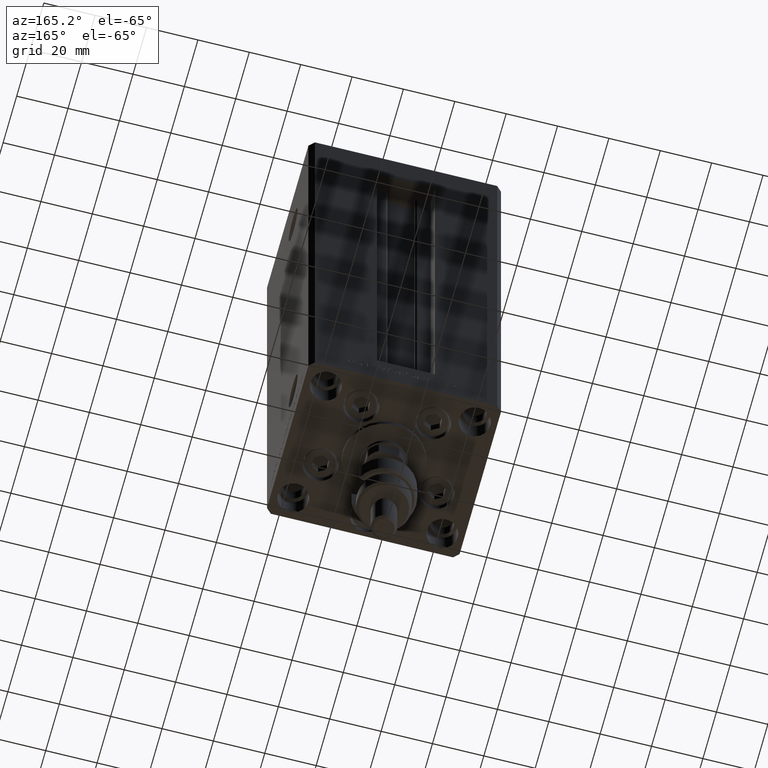
[diagram: clean part render]
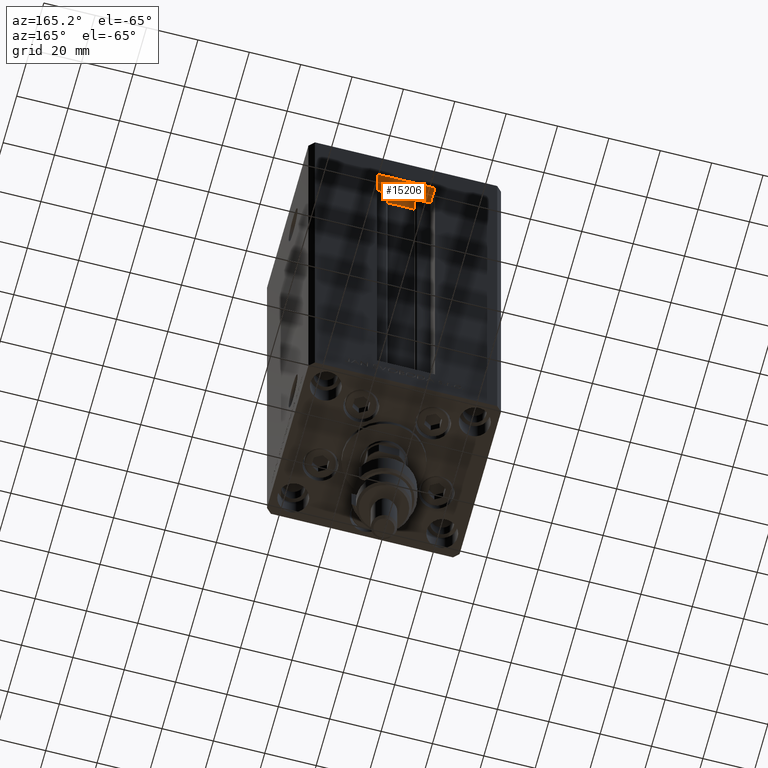
[diagram: same view with one face highlighted and labeled with its STEP entity id]
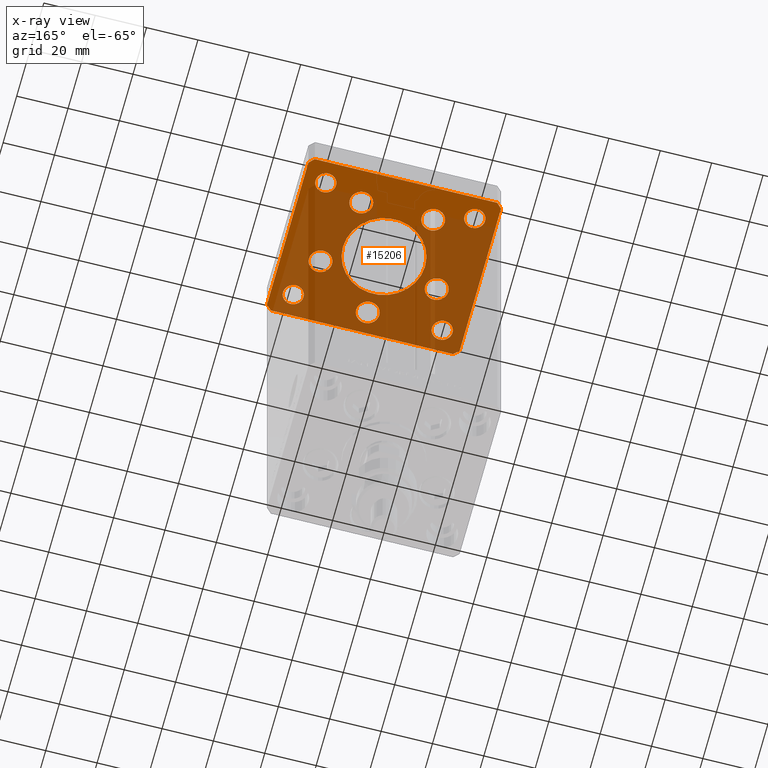
[diagram: x-ray of the same camera — body ghosted, the highlighted face saturated]
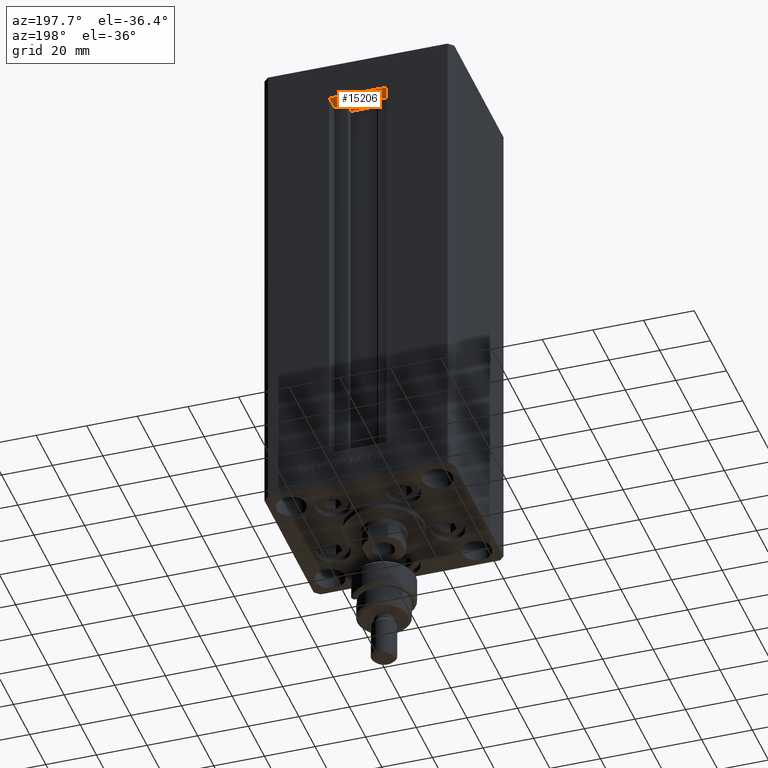
[diagram: same view with one face highlighted and labeled with its STEP entity id]
A machine part, auxiliary view. The second image highlights one B-rep face of the part: STEP entity #15206.
The next image is the same camera in x-ray: the body ghosted, the highlighted face saturated — about 73% of this face is hidden behind the body in this view.
A second angle (auxiliary view) of the same face is appended — the face is thin or edge-on in the first view.
In plain terms, the highlighted planar face has unit normal (0, 0, 1).
Its self-contained STEP definition (entity closure, byte-faithful):
#69 = VECTOR ( 'NONE', #26062, 1000.000000000000000 ) ;
#404 = VERTEX_POINT ( 'NONE', #17530 ) ;
#678 = DIRECTION ( 'NONE',  ( 1.000000000000000000, 0.000000000000000000, 0.000000000000000000 ) ) ;
#708 = ORIENTED_EDGE ( 'NONE', *, *, #14565, .F. ) ;
#876 = AXIS2_PLACEMENT_3D ( 'NONE', #47616, #23892, #32058 ) ;
#1209 = EDGE_CURVE ( 'NONE', #22121, #33200, #34092, .T. ) ;
#1235 = DIRECTION ( 'NONE',  ( 1.000000000000000000, 0.000000000000000000, 0.000000000000000000 ) ) ;
#1530 = AXIS2_PLACEMENT_3D ( 'NONE', #39273, #31621, #16043 ) ;
#2572 = AXIS2_PLACEMENT_3D ( 'NONE', #49474, #49733, #29589 ) ;
#2823 = EDGE_CURVE ( 'NONE', #404, #44061, #34966, .T. ) ;
#2940 = EDGE_CURVE ( 'NONE', #50050, #28898, #42026, .T. ) ;
#3767 = CARTESIAN_POINT ( 'NONE',  ( 29.00000000000001066, 24.00000000000000711, -15.00000000000000000 ) ) ;
#3794 = CARTESIAN_POINT ( 'NONE',  ( 37.50000000000001421, -30.50000000000000711, -15.00000000000000000 ) ) ;
#3923 = ORIENTED_EDGE ( 'NONE', *, *, #28766, .F. ) ;
#4332 = CARTESIAN_POINT ( 'NONE',  ( -33.00000000000000711, 24.00000000000000711, -15.00000000000000000 ) ) ;
#4336 = EDGE_CURVE ( 'NONE', #4981, #19850, #49724, .T. ) ;
#4348 = DIRECTION ( 'NONE',  ( -1.000000000000000000, 0.000000000000000000, 0.000000000000000000 ) ) ;
#4368 = AXIS2_PLACEMENT_3D ( 'NONE', #43062, #46881, #19587 ) ;
#4510 = CARTESIAN_POINT ( 'NONE',  ( -33.00000000000000711, -23.99999999999999289, -15.00000000000000000 ) ) ;
#4518 = CARTESIAN_POINT ( 'NONE',  ( -25.00000000000001066, -23.99999999999999289, -15.00000000000000000 ) ) ;
#4543 = CARTESIAN_POINT ( 'NONE',  ( 35.49999999999992184, 32.50000000000000711, -15.00000000000000000 ) ) ;
#4787 = EDGE_CURVE ( 'NONE', #26124, #34533, #43672, .T. ) ;
#4981 = VERTEX_POINT ( 'NONE', #31133 ) ;
#5221 = FACE_BOUND ( 'NONE', #29828, .T. ) ;
#5439 = CARTESIAN_POINT ( 'NONE',  ( -35.50000000000002842, 32.49999999999999289, -15.00000000000000000 ) ) ;
#5844 = DIRECTION ( 'NONE',  ( -0.7071067811865426878, -0.7071067811865524577, 0.000000000000000000 ) ) ;
#6157 = LINE ( 'NONE', #6407, #69 ) ;
#6295 = LINE ( 'NONE', #14209, #33550 ) ;
#6407 = CARTESIAN_POINT ( 'NONE',  ( 35.49999999999992184, 32.50000000000000711, -15.00000000000000000 ) ) ;
#6420 = DIRECTION ( 'NONE',  ( -0.000000000000000000, -0.000000000000000000, -1.000000000000000000 ) ) ;
#6622 = AXIS2_PLACEMENT_3D ( 'NONE', #27955, #28456, #35853 ) ;
#6719 = CIRCLE ( 'NONE', #46707, 4.500000000000000888 ) ;
#6747 = EDGE_CURVE ( 'NONE', #29722, #17538, #6157, .T. ) ;
#7273 = VERTEX_POINT ( 'NONE', #20108 ) ;
#7913 = ORIENTED_EDGE ( 'NONE', *, *, #31386, .F. ) ;
#8972 = EDGE_CURVE ( 'NONE', #34921, #47012, #24603, .T. ) ;
#9132 = CARTESIAN_POINT ( 'NONE',  ( 0.000000000000000000, 0.000000000000000000, -15.00000000000000000 ) ) ;
#9285 = CARTESIAN_POINT ( 'NONE',  ( -29.00000000000001066, -23.99999999999999289, -15.00000000000000000 ) ) ;
#9439 = CARTESIAN_POINT ( 'NONE',  ( 22.62741699796951877, -8.000000000000000000, -15.00000000000000000 ) ) ;
#9501 = CARTESIAN_POINT ( 'NONE',  ( -16.00000000000000000, 1.959434878635764737E-15, -15.00000000000000000 ) ) ;
#9521 = CARTESIAN_POINT ( 'NONE',  ( 29.00000000000001066, -23.99999999999999289, -15.00000000000000000 ) ) ;
#9961 = AXIS2_PLACEMENT_3D ( 'NONE', #30065, #44859, #22396 ) ;
#10136 = EDGE_CURVE ( 'NONE', #19850, #4981, #34273, .T. ) ;
#10159 = CARTESIAN_POINT ( 'NONE',  ( -35.50000000000002842, 32.49999999999999289, -15.00000000000000000 ) ) ;
#10349 = ORIENTED_EDGE ( 'NONE', *, *, #13778, .F. ) ;
#10938 = ORIENTED_EDGE ( 'NONE', *, *, #23290, .F. ) ;
#11359 = ORIENTED_EDGE ( 'NONE', *, *, #24561, .F. ) ;
#11685 = EDGE_LOOP ( 'NONE', ( #39452, #26827 ) ) ;
#12003 = VERTEX_POINT ( 'NONE', #46341 ) ;
#12117 = PLANE ( 'NONE',  #6622 ) ;
#12310 = ORIENTED_EDGE ( 'NONE', *, *, #1209, .T. ) ;
#12582 = EDGE_CURVE ( 'NONE', #46758, #46001, #36019, .T. ) ;
#12670 = DIRECTION ( 'NONE',  ( 0.000000000000000000, 0.000000000000000000, 1.000000000000000000 ) ) ;
#12710 = CARTESIAN_POINT ( 'NONE',  ( -37.50000000000001421, 30.49999999999998579, -15.00000000000000000 ) ) ;
#12880 = FACE_BOUND ( 'NONE', #14007, .T. ) ;
#13329 = CARTESIAN_POINT ( 'NONE',  ( -22.62741699796951877, -8.000000000000005329, -15.00000000000000000 ) ) ;
#13400 = VERTEX_POINT ( 'NONE', #49564 ) ;
#13526 = AXIS2_PLACEMENT_3D ( 'NONE', #9521, #33009, #48080 ) ;
#13716 = DIRECTION ( 'NONE',  ( -0.7071067811865482389, 0.7071067811865469066, 0.000000000000000000 ) ) ;
#13778 = EDGE_CURVE ( 'NONE', #12003, #7273, #49944, .T. ) ;
#14007 = EDGE_LOOP ( 'NONE', ( #10938, #42365 ) ) ;
#14122 = DIRECTION ( 'NONE',  ( 1.000000000000000000, 0.000000000000000000, 0.000000000000000000 ) ) ;
#14209 = CARTESIAN_POINT ( 'NONE',  ( 37.49999999999992184, 30.50000000000001066, -15.00000000000000000 ) ) ;
#14330 = AXIS2_PLACEMENT_3D ( 'NONE', #3767, #27248, #37985 ) ;
#14493 = DIRECTION ( 'NONE',  ( 0.000000000000000000, -0.000000000000000000, -1.000000000000000000 ) ) ;
#14565 = EDGE_CURVE ( 'NONE', #31536, #13400, #6719, .T. ) ;
#14598 = DIRECTION ( 'NONE',  ( 0.000000000000000000, 0.000000000000000000, 1.000000000000000000 ) ) ;
#14683 = VECTOR ( 'NONE', #36273, 1000.000000000000000 ) ;
#15206 = ADVANCED_FACE ( 'NONE', ( #32272, #5221, #20030, #16454, #44250, #12880, #47839, #35599, #27700, #40188, #48088 ), #12117, .F. ) ;
#15272 = VERTEX_POINT ( 'NONE', #29698 ) ;
#15355 = CARTESIAN_POINT ( 'NONE',  ( 35.50000000000000711, -32.50000000000000711, -15.00000000000000000 ) ) ;
#15432 = CARTESIAN_POINT ( 'NONE',  ( -18.12741699796952233, -8.000000000000005329, -15.00000000000000000 ) ) ;
#15435 = CARTESIAN_POINT ( 'NONE',  ( 13.99106857963322348, 19.50000000000000000, -15.00000000000000000 ) ) ;
#16043 = DIRECTION ( 'NONE',  ( 1.000000000000000000, 0.000000000000000000, 0.000000000000000000 ) ) ;
#16283 = AXIS2_PLACEMENT_3D ( 'NONE', #15435, #19765, #31006 ) ;
#16454 = FACE_BOUND ( 'NONE', #49909, .T. ) ;
#16734 = CARTESIAN_POINT ( 'NONE',  ( -9.491068579633228808, 19.49999999999999645, -15.00000000000000000 ) ) ;
#16763 = ORIENTED_EDGE ( 'NONE', *, *, #4787, .F. ) ;
#16778 = CIRCLE ( 'NONE', #48545, 3.999999999999996447 ) ;
#16952 = EDGE_CURVE ( 'NONE', #34533, #29722, #6295, .T. ) ;
#17530 = CARTESIAN_POINT ( 'NONE',  ( 16.00000000000000000, 0.000000000000000000, -15.00000000000000000 ) ) ;
#17538 = VERTEX_POINT ( 'NONE', #5439 ) ;
#17635 = CIRCLE ( 'NONE', #32330, 4.499999999999999112 ) ;
#18046 = CARTESIAN_POINT ( 'NONE',  ( -35.49999999999998579, -32.50000000000001421, -15.00000000000000000 ) ) ;
#18170 = DIRECTION ( 'NONE',  ( 1.000000000000000000, 0.000000000000000000, 0.000000000000000000 ) ) ;
#18252 = EDGE_CURVE ( 'NONE', #28898, #26124, #22771, .T. ) ;
#18416 = CARTESIAN_POINT ( 'NONE',  ( -13.99106857963322703, 19.49999999999999645, -15.00000000000000000 ) ) ;
#18618 = CARTESIAN_POINT ( 'NONE',  ( 18.12741699796951877, -8.000000000000000000, -15.00000000000000000 ) ) ;
#18906 = VECTOR ( 'NONE', #23026, 1000.000000000000000 ) ;
#19232 = CARTESIAN_POINT ( 'NONE',  ( 33.00000000000001421, 24.00000000000000711, -15.00000000000000000 ) ) ;
#19271 = LINE ( 'NONE', #23107, #28687 ) ;
#19528 = ORIENTED_EDGE ( 'NONE', *, *, #18252, .F. ) ;
#19576 = VERTEX_POINT ( 'NONE', #42489 ) ;
#19587 = DIRECTION ( 'NONE',  ( 1.000000000000000000, 0.000000000000000000, 0.000000000000000000 ) ) ;
#19594 = EDGE_CURVE ( 'NONE', #49238, #50050, #19271, .T. ) ;
#19765 = DIRECTION ( 'NONE',  ( 0.000000000000000000, -0.000000000000000000, -1.000000000000000000 ) ) ;
#19850 = VERTEX_POINT ( 'NONE', #42427 ) ;
#20030 = FACE_BOUND ( 'NONE', #35917, .T. ) ;
#20108 = CARTESIAN_POINT ( 'NONE',  ( 25.00000000000000711, -23.99999999999999289, -15.00000000000000000 ) ) ;
#20579 = CARTESIAN_POINT ( 'NONE',  ( -29.00000000000001066, 24.00000000000000711, -15.00000000000000000 ) ) ;
#20800 = ORIENTED_EDGE ( 'NONE', *, *, #44650, .F. ) ;
#20951 = DIRECTION ( 'NONE',  ( 0.000000000000000000, -0.000000000000000000, -1.000000000000000000 ) ) ;
#21174 = CARTESIAN_POINT ( 'NONE',  ( -27.12741699796951877, -8.000000000000005329, -15.00000000000000000 ) ) ;
#21200 = DIRECTION ( 'NONE',  ( 1.000000000000000000, 0.000000000000000000, 0.000000000000000000 ) ) ;
#21983 = VERTEX_POINT ( 'NONE', #12710 ) ;
#22121 = VERTEX_POINT ( 'NONE', #35368 ) ;
#22331 = DIRECTION ( 'NONE',  ( 4.550094363217855288E-16, -1.000000000000000000, 0.000000000000000000 ) ) ;
#22396 = DIRECTION ( 'NONE',  ( -1.000000000000000000, 0.000000000000000000, 0.000000000000000000 ) ) ;
#22771 = LINE ( 'NONE', #15355, #18906 ) ;
#22831 = VERTEX_POINT ( 'NONE', #16734 ) ;
#23026 = DIRECTION ( 'NONE',  ( 0.7071067811865487940, 0.7071067811865463515, 0.000000000000000000 ) ) ;
#23047 = ORIENTED_EDGE ( 'NONE', *, *, #44132, .T. ) ;
#23096 = LINE ( 'NONE', #34573, #27303 ) ;
#23107 = CARTESIAN_POINT ( 'NONE',  ( -37.49999999999998579, -30.50000000000001421, -15.00000000000000000 ) ) ;
#23207 = AXIS2_PLACEMENT_3D ( 'NONE', #32345, #43815, #31844 ) ;
#23290 = EDGE_CURVE ( 'NONE', #22831, #49214, #41807, .T. ) ;
#23356 = DIRECTION ( 'NONE',  ( 0.7071067811865474617, -0.7071067811865474617, 0.000000000000000000 ) ) ;
#23892 = DIRECTION ( 'NONE',  ( 0.000000000000000000, -0.000000000000000000, -1.000000000000000000 ) ) ;
#24056 = ORIENTED_EDGE ( 'NONE', *, *, #28089, .F. ) ;
#24506 = EDGE_CURVE ( 'NONE', #17538, #21983, #26243, .T. ) ;
#24561 = EDGE_CURVE ( 'NONE', #44061, #404, #45082, .T. ) ;
#24603 = CIRCLE ( 'NONE', #2572, 4.499999999999997335 ) ;
#24872 = DIRECTION ( 'NONE',  ( -0.000000000000000000, -0.000000000000000000, -1.000000000000000000 ) ) ;
#24954 = AXIS2_PLACEMENT_3D ( 'NONE', #9439, #20951, #21200 ) ;
#25058 = ORIENTED_EDGE ( 'NONE', *, *, #6747, .F. ) ;
#25468 = DIRECTION ( 'NONE',  ( 1.000000000000000000, 9.773090005503140331E-17, 0.000000000000000000 ) ) ;
#25829 = CARTESIAN_POINT ( 'NONE',  ( -29.00000000000001066, -23.99999999999999289, -15.00000000000000000 ) ) ;
#25859 = CARTESIAN_POINT ( 'NONE',  ( -13.99106857963322703, 19.49999999999999645, -15.00000000000000000 ) ) ;
#26062 = DIRECTION ( 'NONE',  ( -1.000000000000000000, -1.954618001100629052E-16, 0.000000000000000000 ) ) ;
#26124 = VERTEX_POINT ( 'NONE', #3794 ) ;
#26243 = LINE ( 'NONE', #10159, #41004 ) ;
#26503 = DIRECTION ( 'NONE',  ( 1.000000000000000000, 0.000000000000000000, 0.000000000000000000 ) ) ;
#26508 = AXIS2_PLACEMENT_3D ( 'NONE', #13329, #36808, #26503 ) ;
#26804 = EDGE_CURVE ( 'NONE', #19576, #15272, #39453, .T. ) ;
#26827 = ORIENTED_EDGE ( 'NONE', *, *, #10136, .F. ) ;
#27057 = EDGE_LOOP ( 'NONE', ( #40874, #11359 ) ) ;
#27248 = DIRECTION ( 'NONE',  ( 0.000000000000000000, 0.000000000000000000, 1.000000000000000000 ) ) ;
#27303 = VECTOR ( 'NONE', #22331, 1000.000000000000000 ) ;
#27573 = ORIENTED_EDGE ( 'NONE', *, *, #24506, .F. ) ;
#27700 = FACE_OUTER_BOUND ( 'NONE', #31397, .T. ) ;
#27955 = CARTESIAN_POINT ( 'NONE',  ( 0.000000000000000000, 0.000000000000000000, -15.00000000000000000 ) ) ;
#28089 = EDGE_CURVE ( 'NONE', #15272, #19576, #44393, .T. ) ;
#28456 = DIRECTION ( 'NONE',  ( -0.000000000000000000, 0.000000000000000000, 1.000000000000000000 ) ) ;
#28687 = VECTOR ( 'NONE', #23356, 1000.000000000000114 ) ;
#28766 = EDGE_CURVE ( 'NONE', #47012, #34921, #37916, .T. ) ;
#28898 = VERTEX_POINT ( 'NONE', #38253 ) ;
#29062 = CIRCLE ( 'NONE', #13526, 4.000000000000003553 ) ;
#29589 = DIRECTION ( 'NONE',  ( 1.000000000000000000, 0.000000000000000000, 0.000000000000000000 ) ) ;
#29698 = CARTESIAN_POINT ( 'NONE',  ( 4.500000000000003553, -24.00000000000000000, -15.00000000000000000 ) ) ;
#29722 = VERTEX_POINT ( 'NONE', #4543 ) ;
#29824 = CIRCLE ( 'NONE', #24954, 4.500000000000000888 ) ;
#29828 = EDGE_LOOP ( 'NONE', ( #3923, #43218 ) ) ;
#30065 = CARTESIAN_POINT ( 'NONE',  ( 29.00000000000001066, -23.99999999999999289, -15.00000000000000000 ) ) ;
#30095 = VERTEX_POINT ( 'NONE', #19232 ) ;
#30168 = CARTESIAN_POINT ( 'NONE',  ( 29.00000000000001066, 24.00000000000000711, -15.00000000000000000 ) ) ;
#30318 = DIRECTION ( 'NONE',  ( 1.000000000000000000, 0.000000000000000000, 0.000000000000000000 ) ) ;
#31006 = DIRECTION ( 'NONE',  ( 1.000000000000000000, 0.000000000000000000, 0.000000000000000000 ) ) ;
#31133 = CARTESIAN_POINT ( 'NONE',  ( 18.49106857963322881, 19.50000000000000000, -15.00000000000000000 ) ) ;
#31386 = EDGE_CURVE ( 'NONE', #13400, #31536, #29824, .T. ) ;
#31397 = EDGE_LOOP ( 'NONE', ( #50098, #20800, #27573, #25058, #44187, #16763, #19528, #45591 ) ) ;
#31536 = VERTEX_POINT ( 'NONE', #18618 ) ;
#31621 = DIRECTION ( 'NONE',  ( 0.000000000000000000, 0.000000000000000000, 1.000000000000000000 ) ) ;
#31704 = AXIS2_PLACEMENT_3D ( 'NONE', #9132, #43597, #1235 ) ;
#31844 = DIRECTION ( 'NONE',  ( 1.000000000000000000, 0.000000000000000000, 0.000000000000000000 ) ) ;
#32058 = DIRECTION ( 'NONE',  ( 1.000000000000000000, 0.000000000000000000, 0.000000000000000000 ) ) ;
#32272 = FACE_BOUND ( 'NONE', #27057, .T. ) ;
#32330 = AXIS2_PLACEMENT_3D ( 'NONE', #25859, #34015, #14122 ) ;
#32345 = CARTESIAN_POINT ( 'NONE',  ( 2.939152317953647500E-15, -24.00000000000000000, -15.00000000000000000 ) ) ;
#32460 = CARTESIAN_POINT ( 'NONE',  ( -37.49999999999998579, -30.50000000000001421, -15.00000000000000000 ) ) ;
#33009 = DIRECTION ( 'NONE',  ( -0.000000000000000000, -0.000000000000000000, -1.000000000000000000 ) ) ;
#33087 = EDGE_LOOP ( 'NONE', ( #37048, #23047 ) ) ;
#33200 = VERTEX_POINT ( 'NONE', #4332 ) ;
#33550 = VECTOR ( 'NONE', #13716, 999.9999999999998863 ) ;
#33660 = EDGE_LOOP ( 'NONE', ( #10349, #37057 ) ) ;
#34015 = DIRECTION ( 'NONE',  ( 0.000000000000000000, -0.000000000000000000, -1.000000000000000000 ) ) ;
#34092 = CIRCLE ( 'NONE', #1530, 4.000000000000000000 ) ;
#34149 = EDGE_CURVE ( 'NONE', #30095, #37843, #47747, .T. ) ;
#34273 = CIRCLE ( 'NONE', #876, 4.500000000000005329 ) ;
#34533 = VERTEX_POINT ( 'NONE', #35860 ) ;
#34573 = CARTESIAN_POINT ( 'NONE',  ( -37.50000000000001421, 30.49999999999998579, -15.00000000000000000 ) ) ;
#34588 = AXIS2_PLACEMENT_3D ( 'NONE', #30168, #14598, #49562 ) ;
#34687 = EDGE_CURVE ( 'NONE', #46001, #46758, #16778, .T. ) ;
#34921 = VERTEX_POINT ( 'NONE', #21174 ) ;
#34966 = CIRCLE ( 'NONE', #31704, 16.00000000000000000 ) ;
#35368 = CARTESIAN_POINT ( 'NONE',  ( -25.00000000000001066, 24.00000000000000711, -15.00000000000000000 ) ) ;
#35569 = DIRECTION ( 'NONE',  ( 1.000000000000000000, 0.000000000000000000, 0.000000000000000000 ) ) ;
#35599 = FACE_BOUND ( 'NONE', #42190, .T. ) ;
#35823 = DIRECTION ( 'NONE',  ( 0.000000000000000000, -0.000000000000000000, -1.000000000000000000 ) ) ;
#35853 = DIRECTION ( 'NONE',  ( 1.000000000000000000, 0.000000000000000000, 0.000000000000000000 ) ) ;
#35860 = CARTESIAN_POINT ( 'NONE',  ( 37.49999999999992184, 30.50000000000001066, -15.00000000000000000 ) ) ;
#35917 = EDGE_LOOP ( 'NONE', ( #24056, #49974 ) ) ;
#36019 = CIRCLE ( 'NONE', #36860, 3.999999999999996447 ) ;
#36273 = DIRECTION ( 'NONE',  ( -1.478780668045802821E-15, 1.000000000000000000, 0.000000000000000000 ) ) ;
#36394 = CARTESIAN_POINT ( 'NONE',  ( 25.00000000000000711, 24.00000000000000711, -15.00000000000000000 ) ) ;
#36497 = AXIS2_PLACEMENT_3D ( 'NONE', #20579, #12670, #678 ) ;
#36808 = DIRECTION ( 'NONE',  ( 0.000000000000000000, -0.000000000000000000, -1.000000000000000000 ) ) ;
#36860 = AXIS2_PLACEMENT_3D ( 'NONE', #25829, #6420, #38077 ) ;
#37048 = ORIENTED_EDGE ( 'NONE', *, *, #34149, .T. ) ;
#37057 = ORIENTED_EDGE ( 'NONE', *, *, #48136, .F. ) ;
#37223 = CARTESIAN_POINT ( 'NONE',  ( 22.62741699796951877, -8.000000000000000000, -15.00000000000000000 ) ) ;
#37843 = VERTEX_POINT ( 'NONE', #36394 ) ;
#37916 = CIRCLE ( 'NONE', #26508, 4.499999999999997335 ) ;
#37985 = DIRECTION ( 'NONE',  ( 1.000000000000000000, 0.000000000000000000, 0.000000000000000000 ) ) ;
#38077 = DIRECTION ( 'NONE',  ( -1.000000000000000000, 0.000000000000000000, 0.000000000000000000 ) ) ;
#38253 = CARTESIAN_POINT ( 'NONE',  ( 35.50000000000000711, -32.50000000000000711, -15.00000000000000000 ) ) ;
#38601 = EDGE_CURVE ( 'NONE', #33200, #22121, #40566, .T. ) ;
#39273 = CARTESIAN_POINT ( 'NONE',  ( -29.00000000000001066, 24.00000000000000711, -15.00000000000000000 ) ) ;
#39452 = ORIENTED_EDGE ( 'NONE', *, *, #4336, .F. ) ;
#39453 = CIRCLE ( 'NONE', #47612, 4.500000000000001776 ) ;
#40104 = CARTESIAN_POINT ( 'NONE',  ( 37.50000000000001421, -30.50000000000000711, -15.00000000000000000 ) ) ;
#40153 = CARTESIAN_POINT ( 'NONE',  ( 2.939152317953647500E-15, -24.00000000000000000, -15.00000000000000000 ) ) ;
#40188 = FACE_BOUND ( 'NONE', #33660, .T. ) ;
#40566 = CIRCLE ( 'NONE', #36497, 4.000000000000000000 ) ;
#40874 = ORIENTED_EDGE ( 'NONE', *, *, #2823, .F. ) ;
#41004 = VECTOR ( 'NONE', #5844, 1000.000000000000000 ) ;
#41096 = CIRCLE ( 'NONE', #34588, 4.000000000000003553 ) ;
#41807 = CIRCLE ( 'NONE', #46686, 4.499999999999999112 ) ;
#42026 = LINE ( 'NONE', #18046, #47175 ) ;
#42190 = EDGE_LOOP ( 'NONE', ( #12310, #50454 ) ) ;
#42365 = ORIENTED_EDGE ( 'NONE', *, *, #49053, .F. ) ;
#42427 = CARTESIAN_POINT ( 'NONE',  ( 9.491068579633218150, 19.50000000000000000, -15.00000000000000000 ) ) ;
#42489 = CARTESIAN_POINT ( 'NONE',  ( -4.499999999999999112, -24.00000000000000000, -15.00000000000000000 ) ) ;
#42651 = DIRECTION ( 'NONE',  ( 0.000000000000000000, -0.000000000000000000, -1.000000000000000000 ) ) ;
#43062 = CARTESIAN_POINT ( 'NONE',  ( 0.000000000000000000, 0.000000000000000000, -15.00000000000000000 ) ) ;
#43218 = ORIENTED_EDGE ( 'NONE', *, *, #8972, .F. ) ;
#43443 = ORIENTED_EDGE ( 'NONE', *, *, #12582, .F. ) ;
#43597 = DIRECTION ( 'NONE',  ( 0.000000000000000000, -0.000000000000000000, -1.000000000000000000 ) ) ;
#43672 = LINE ( 'NONE', #40104, #14683 ) ;
#43815 = DIRECTION ( 'NONE',  ( 0.000000000000000000, -0.000000000000000000, -1.000000000000000000 ) ) ;
#44061 = VERTEX_POINT ( 'NONE', #9501 ) ;
#44132 = EDGE_CURVE ( 'NONE', #37843, #30095, #41096, .T. ) ;
#44187 = ORIENTED_EDGE ( 'NONE', *, *, #16952, .F. ) ;
#44250 = FACE_BOUND ( 'NONE', #11685, .T. ) ;
#44393 = CIRCLE ( 'NONE', #23207, 4.500000000000001776 ) ;
#44650 = EDGE_CURVE ( 'NONE', #21983, #49238, #23096, .T. ) ;
#44859 = DIRECTION ( 'NONE',  ( -0.000000000000000000, -0.000000000000000000, -1.000000000000000000 ) ) ;
#45082 = CIRCLE ( 'NONE', #4368, 16.00000000000000000 ) ;
#45591 = ORIENTED_EDGE ( 'NONE', *, *, #2940, .F. ) ;
#45830 = EDGE_LOOP ( 'NONE', ( #49102, #43443 ) ) ;
#46001 = VERTEX_POINT ( 'NONE', #4518 ) ;
#46341 = CARTESIAN_POINT ( 'NONE',  ( 33.00000000000001421, -23.99999999999999289, -15.00000000000000000 ) ) ;
#46686 = AXIS2_PLACEMENT_3D ( 'NONE', #18416, #42651, #18170 ) ;
#46707 = AXIS2_PLACEMENT_3D ( 'NONE', #37223, #14493, #30318 ) ;
#46758 = VERTEX_POINT ( 'NONE', #4510 ) ;
#46881 = DIRECTION ( 'NONE',  ( 0.000000000000000000, -0.000000000000000000, -1.000000000000000000 ) ) ;
#47012 = VERTEX_POINT ( 'NONE', #15432 ) ;
#47175 = VECTOR ( 'NONE', #25468, 1000.000000000000000 ) ;
#47612 = AXIS2_PLACEMENT_3D ( 'NONE', #40153, #35823, #35569 ) ;
#47616 = CARTESIAN_POINT ( 'NONE',  ( 13.99106857963322348, 19.50000000000000000, -15.00000000000000000 ) ) ;
#47747 = CIRCLE ( 'NONE', #14330, 4.000000000000003553 ) ;
#47839 = FACE_BOUND ( 'NONE', #33087, .T. ) ;
#48080 = DIRECTION ( 'NONE',  ( -1.000000000000000000, 0.000000000000000000, 0.000000000000000000 ) ) ;
#48088 = FACE_BOUND ( 'NONE', #45830, .T. ) ;
#48136 = EDGE_CURVE ( 'NONE', #7273, #12003, #29062, .T. ) ;
#48545 = AXIS2_PLACEMENT_3D ( 'NONE', #9285, #24872, #4348 ) ;
#49025 = CARTESIAN_POINT ( 'NONE',  ( -18.49106857963322526, 19.49999999999999645, -15.00000000000000000 ) ) ;
#49053 = EDGE_CURVE ( 'NONE', #49214, #22831, #17635, .T. ) ;
#49102 = ORIENTED_EDGE ( 'NONE', *, *, #34687, .F. ) ;
#49214 = VERTEX_POINT ( 'NONE', #49025 ) ;
#49238 = VERTEX_POINT ( 'NONE', #32460 ) ;
#49474 = CARTESIAN_POINT ( 'NONE',  ( -22.62741699796951877, -8.000000000000005329, -15.00000000000000000 ) ) ;
#49562 = DIRECTION ( 'NONE',  ( 1.000000000000000000, 0.000000000000000000, 0.000000000000000000 ) ) ;
#49564 = CARTESIAN_POINT ( 'NONE',  ( 27.12741699796952233, -8.000000000000000000, -15.00000000000000000 ) ) ;
#49724 = CIRCLE ( 'NONE', #16283, 4.500000000000005329 ) ;
#49733 = DIRECTION ( 'NONE',  ( 0.000000000000000000, -0.000000000000000000, -1.000000000000000000 ) ) ;
#49856 = CARTESIAN_POINT ( 'NONE',  ( -35.49999999999998579, -32.50000000000001421, -15.00000000000000000 ) ) ;
#49909 = EDGE_LOOP ( 'NONE', ( #7913, #708 ) ) ;
#49944 = CIRCLE ( 'NONE', #9961, 4.000000000000003553 ) ;
#49974 = ORIENTED_EDGE ( 'NONE', *, *, #26804, .F. ) ;
#50050 = VERTEX_POINT ( 'NONE', #49856 ) ;
#50098 = ORIENTED_EDGE ( 'NONE', *, *, #19594, .F. ) ;
#50454 = ORIENTED_EDGE ( 'NONE', *, *, #38601, .T. ) ;